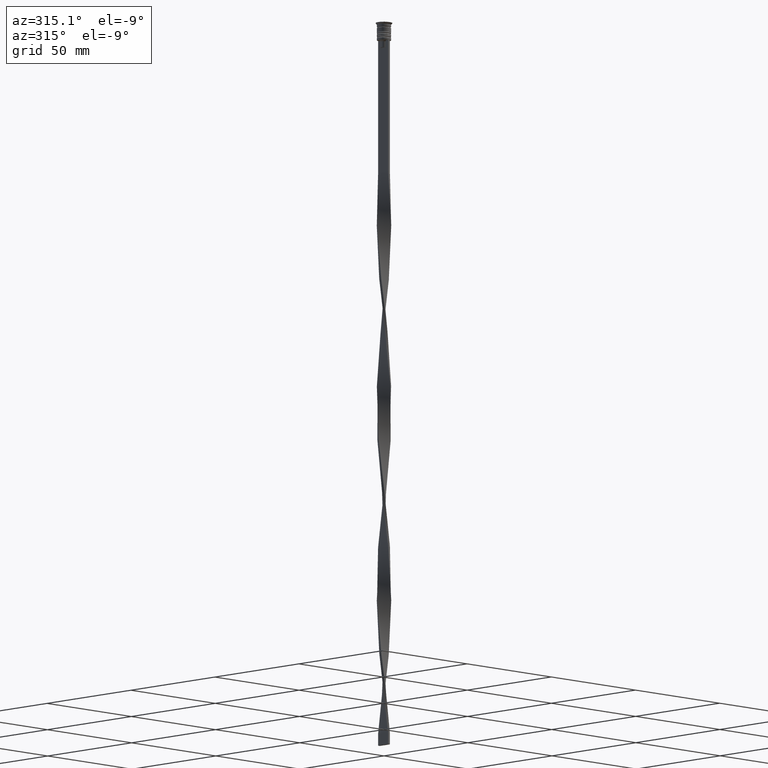
[diagram: clean part render]
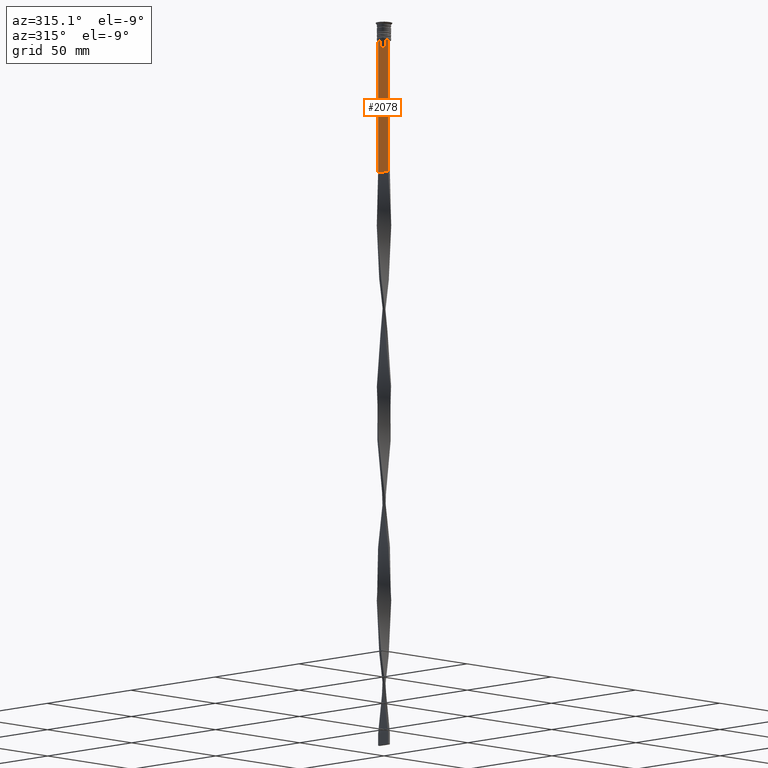
[diagram: same view with one face highlighted and labeled with its STEP entity id]
A machine part, auxiliary view. The second image highlights one B-rep face of the part: STEP entity #2078.
In plain terms, the highlighted planar face has unit normal (-1, 0, 0).
Its self-contained STEP definition (entity closure, byte-faithful):
#11 = VECTOR ( 'NONE', #855, 1000.000000000000000 ) ;
#126 = CARTESIAN_POINT ( 'NONE',  ( -0.5000000000000001110, -3.000000000000000000, -7.500000000000000000 ) ) ;
#141 = VECTOR ( 'NONE', #3161, 1000.000000000000000 ) ;
#159 = EDGE_CURVE ( 'NONE', #297, #785, #3917, .T. ) ;
#296 = LINE ( 'NONE', #920, #1726 ) ;
#297 = VERTEX_POINT ( 'NONE', #1146 ) ;
#358 = ORIENTED_EDGE ( 'NONE', *, *, #3423, .F. ) ;
#467 = DIRECTION ( 'NONE',  ( 0.000000000000000000, 1.000000000000000000, 0.000000000000000000 ) ) ;
#493 = CARTESIAN_POINT ( 'NONE',  ( -0.5000000000000001110, 1.659046061654642523, -7.667851756010361619 ) ) ;
#505 = CARTESIAN_POINT ( 'NONE',  ( -0.5000000000000001110, 3.000000000000000000, -1.417237469701779329 ) ) ;
#545 = ORIENTED_EDGE ( 'NONE', *, *, #2792, .F. ) ;
#555 = EDGE_CURVE ( 'NONE', #3834, #3712, #1907, .T. ) ;
#570 = DIRECTION ( 'NONE',  ( 0.000000000000000000, 0.000000000000000000, 1.000000000000000000 ) ) ;
#629 = VERTEX_POINT ( 'NONE', #1037 ) ;
#634 = VERTEX_POINT ( 'NONE', #756 ) ;
#685 = EDGE_CURVE ( 'NONE', #3318, #2270, #2300, .T. ) ;
#756 = CARTESIAN_POINT ( 'NONE',  ( -0.5000000000000001110, 2.856571371417139904, -7.500000000000000000 ) ) ;
#764 = LINE ( 'NONE', #3462, #2884 ) ;
#768 = CARTESIAN_POINT ( 'NONE',  ( -0.5000000000000001110, -3.000000000000000000, -7.500000000000000000 ) ) ;
#785 = VERTEX_POINT ( 'NONE', #1847 ) ;
#814 = CARTESIAN_POINT ( 'NONE',  ( -0.5000000000000001110, -2.856571371417139904, -7.500000000000000000 ) ) ;
#832 = CARTESIAN_POINT ( 'NONE',  ( -0.5000000000000001110, -1.307669683062199217, 0.000000000000000000 ) ) ;
#852 = LINE ( 'NONE', #2108, #1929 ) ;
#855 = DIRECTION ( 'NONE',  ( -0.000000000000000000, -0.000000000000000000, 1.000000000000000000 ) ) ;
#920 = CARTESIAN_POINT ( 'NONE',  ( -0.5000000000000001110, -3.000000000000000000, -7.500000000000000000 ) ) ;
#1037 = CARTESIAN_POINT ( 'NONE',  ( -0.5000000000000001110, -3.000000000000000000, -7.500000000000000000 ) ) ;
#1136 = LINE ( 'NONE', #2428, #2751 ) ;
#1146 = CARTESIAN_POINT ( 'NONE',  ( -0.5000000000000001110, -1.307669683062199217, -8.000000000000000000 ) ) ;
#1221 = VECTOR ( 'NONE', #1452, 1000.000000000000000 ) ;
#1225 = ORIENTED_EDGE ( 'NONE', *, *, #3371, .F. ) ;
#1233 = DIRECTION ( 'NONE',  ( -1.000000000000000000, 0.000000000000000000, 0.000000000000000000 ) ) ;
#1278 = ORIENTED_EDGE ( 'NONE', *, *, #3332, .T. ) ;
#1418 = CARTESIAN_POINT ( 'NONE',  ( -0.5000000000000001110, 1.307669683062199217, -8.000000000000000000 ) ) ;
#1452 = DIRECTION ( 'NONE',  ( 0.000000000000000000, -1.000000000000000000, 0.000000000000000000 ) ) ;
#1607 = VECTOR ( 'NONE', #3589, 1000.000000000000000 ) ;
#1633 = CARTESIAN_POINT ( 'NONE',  ( -0.5000000000000001110, 1.484355510416485391, -7.834966642958598015 ) ) ;
#1675 = CARTESIAN_POINT ( 'NONE',  ( -0.5000000000000001110, 1.833030277982335532, -7.500000000000000000 ) ) ;
#1726 = VECTOR ( 'NONE', #3304, 1000.000000000000000 ) ;
#1750 = LINE ( 'NONE', #832, #11 ) ;
#1772 = EDGE_CURVE ( 'NONE', #1882, #634, #296, .T. ) ;
#1815 = CARTESIAN_POINT ( 'NONE',  ( -0.5000000000000001110, -1.833030277982335532, -7.500000000000000000 ) ) ;
#1847 = CARTESIAN_POINT ( 'NONE',  ( -0.5000000000000001110, -1.833030277982335532, -7.500000000000000000 ) ) ;
#1882 = VERTEX_POINT ( 'NONE', #3507 ) ;
#1907 = B_SPLINE_CURVE_WITH_KNOTS ( 'NONE', 3,
 ( #1675, #493, #1633, #1418 ),
 .UNSPECIFIED., .F., .F.,
 ( 4, 4 ),
 ( 0.003278537493109840491, 0.004003794023484932504 ),
 .UNSPECIFIED. ) ;
#1929 = VECTOR ( 'NONE', #3885, 1000.000000000000000 ) ;
#1951 = LINE ( 'NONE', #126, #141 ) ;
#1971 = CARTESIAN_POINT ( 'NONE',  ( -0.5000000000000001110, 1.307669683062199217, -10.49999999999999822 ) ) ;
#2004 = CARTESIAN_POINT ( 'NONE',  ( -0.5000000000000001110, 1.399999999999997691, -10.49999999999999822 ) ) ;
#2057 = LINE ( 'NONE', #3912, #1607 ) ;
#2078 = ADVANCED_FACE ( 'NONE', ( #2415 ), #2743, .T. ) ;
#2080 = DIRECTION ( 'NONE',  ( 0.000000000000000000, 0.000000000000000000, -1.000000000000000000 ) ) ;
#2108 = CARTESIAN_POINT ( 'NONE',  ( -0.5000000000000001110, -3.000000000000000000, -1.417237469701779329 ) ) ;
#2225 = CARTESIAN_POINT ( 'NONE',  ( -0.5000000000000001110, 1.833030277982335532, -7.500000000000000000 ) ) ;
#2231 = CARTESIAN_POINT ( 'NONE',  ( -0.5000000000000001110, -3.000000000000000000, -63.50000000000000000 ) ) ;
#2242 = ORIENTED_EDGE ( 'NONE', *, *, #3902, .F. ) ;
#2270 = VERTEX_POINT ( 'NONE', #2335 ) ;
#2300 = LINE ( 'NONE', #2004, #3931 ) ;
#2309 = LINE ( 'NONE', #505, #3131 ) ;
#2322 = DIRECTION ( 'NONE',  ( 0.000000000000000000, -1.000000000000000000, 0.000000000000000000 ) ) ;
#2335 = CARTESIAN_POINT ( 'NONE',  ( -0.5000000000000001110, -1.307669683062199217, -10.49999999999999822 ) ) ;
#2415 = FACE_OUTER_BOUND ( 'NONE', #2767, .T. ) ;
#2428 = CARTESIAN_POINT ( 'NONE',  ( -0.5000000000000001110, 1.307669683062199217, 0.000000000000000000 ) ) ;
#2632 = ORIENTED_EDGE ( 'NONE', *, *, #1772, .F. ) ;
#2666 = VERTEX_POINT ( 'NONE', #3740 ) ;
#2743 = PLANE ( 'NONE',  #3382 ) ;
#2751 = VECTOR ( 'NONE', #2080, 1000.000000000000000 ) ;
#2767 = EDGE_LOOP ( 'NONE', ( #3479, #545, #2632, #1278, #3228, #358, #1225, #3488, #3020, #3688, #3450, #2242 ) ) ;
#2775 = VERTEX_POINT ( 'NONE', #2231 ) ;
#2792 = EDGE_CURVE ( 'NONE', #634, #3834, #3529, .T. ) ;
#2847 = EDGE_CURVE ( 'NONE', #2270, #297, #1750, .T. ) ;
#2854 = VERTEX_POINT ( 'NONE', #814 ) ;
#2884 = VECTOR ( 'NONE', #467, 1000.000000000000000 ) ;
#3018 = CARTESIAN_POINT ( 'NONE',  ( -0.5000000000000001110, -1.307669683062199217, -8.000000000000000000 ) ) ;
#3020 = ORIENTED_EDGE ( 'NONE', *, *, #159, .F. ) ;
#3131 = VECTOR ( 'NONE', #3840, 1000.000000000000000 ) ;
#3161 = DIRECTION ( 'NONE',  ( 0.000000000000000000, -1.000000000000000000, 0.000000000000000000 ) ) ;
#3228 = ORIENTED_EDGE ( 'NONE', *, *, #3291, .F. ) ;
#3291 = EDGE_CURVE ( 'NONE', #2775, #2666, #764, .T. ) ;
#3299 = CARTESIAN_POINT ( 'NONE',  ( -0.5000000000000001110, -3.000000000000000000, -1.417237469701779329 ) ) ;
#3304 = DIRECTION ( 'NONE',  ( 0.000000000000000000, -1.000000000000000000, 0.000000000000000000 ) ) ;
#3318 = VERTEX_POINT ( 'NONE', #1971 ) ;
#3332 = EDGE_CURVE ( 'NONE', #1882, #2666, #2309, .T. ) ;
#3336 = CARTESIAN_POINT ( 'NONE',  ( -0.5000000000000001110, -1.484307477388859153, -7.835011508197190722 ) ) ;
#3371 = EDGE_CURVE ( 'NONE', #2854, #629, #1951, .T. ) ;
#3382 = AXIS2_PLACEMENT_3D ( 'NONE', #3299, #1233, #570 ) ;
#3423 = EDGE_CURVE ( 'NONE', #629, #2775, #852, .T. ) ;
#3450 = ORIENTED_EDGE ( 'NONE', *, *, #685, .F. ) ;
#3462 = CARTESIAN_POINT ( 'NONE',  ( -0.5000000000000001110, -3.000000000000000000, -63.50000000000000000 ) ) ;
#3479 = ORIENTED_EDGE ( 'NONE', *, *, #555, .F. ) ;
#3488 = ORIENTED_EDGE ( 'NONE', *, *, #3925, .F. ) ;
#3507 = CARTESIAN_POINT ( 'NONE',  ( -0.5000000000000001110, 3.000000000000000000, -7.500000000000000000 ) ) ;
#3529 = LINE ( 'NONE', #768, #1221 ) ;
#3589 = DIRECTION ( 'NONE',  ( 0.000000000000000000, -1.000000000000000000, 0.000000000000000000 ) ) ;
#3688 = ORIENTED_EDGE ( 'NONE', *, *, #2847, .F. ) ;
#3712 = VERTEX_POINT ( 'NONE', #3713 ) ;
#3713 = CARTESIAN_POINT ( 'NONE',  ( -0.5000000000000001110, 1.307669683062199217, -8.000000000000000000 ) ) ;
#3740 = CARTESIAN_POINT ( 'NONE',  ( -0.5000000000000001110, 3.000000000000000000, -63.50000000000000000 ) ) ;
#3834 = VERTEX_POINT ( 'NONE', #2225 ) ;
#3840 = DIRECTION ( 'NONE',  ( 0.000000000000000000, 0.000000000000000000, -1.000000000000000000 ) ) ;
#3881 = CARTESIAN_POINT ( 'NONE',  ( -0.5000000000000001110, -1.659011726860414093, -7.667884880598472286 ) ) ;
#3885 = DIRECTION ( 'NONE',  ( 0.000000000000000000, 0.000000000000000000, -1.000000000000000000 ) ) ;
#3902 = EDGE_CURVE ( 'NONE', #3712, #3318, #1136, .T. ) ;
#3912 = CARTESIAN_POINT ( 'NONE',  ( -0.5000000000000001110, -3.000000000000000000, -7.500000000000000000 ) ) ;
#3917 = B_SPLINE_CURVE_WITH_KNOTS ( 'NONE', 3,
 ( #3018, #3336, #3881, #1815 ),
 .UNSPECIFIED., .F., .F.,
 ( 4, 4 ),
 ( 0.007225659348748070081, 0.007950554640278040958 ),
 .UNSPECIFIED. ) ;
#3925 = EDGE_CURVE ( 'NONE', #785, #2854, #2057, .T. ) ;
#3931 = VECTOR ( 'NONE', #2322, 1000.000000000000000 ) ;